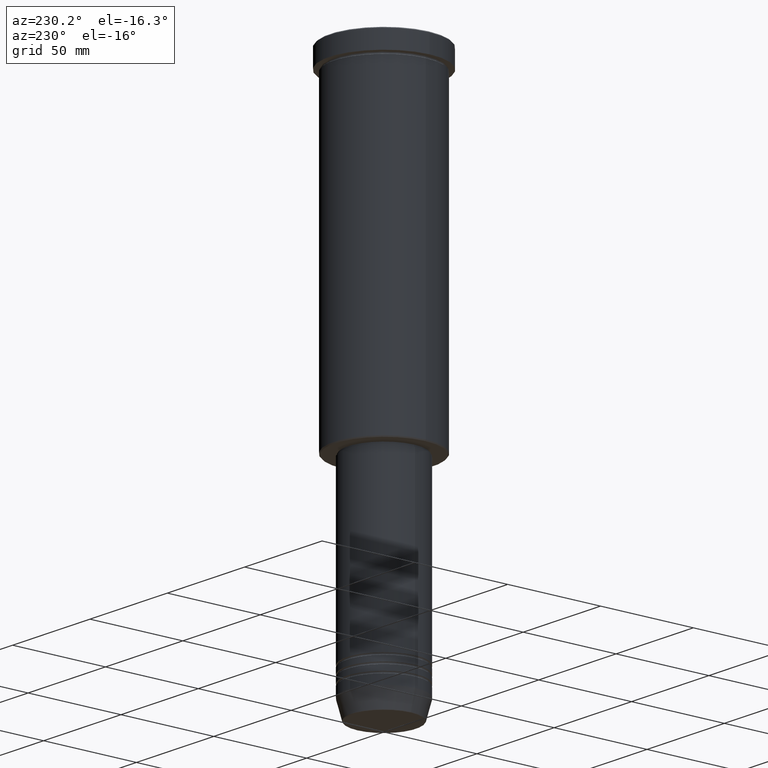
[diagram: clean part render]
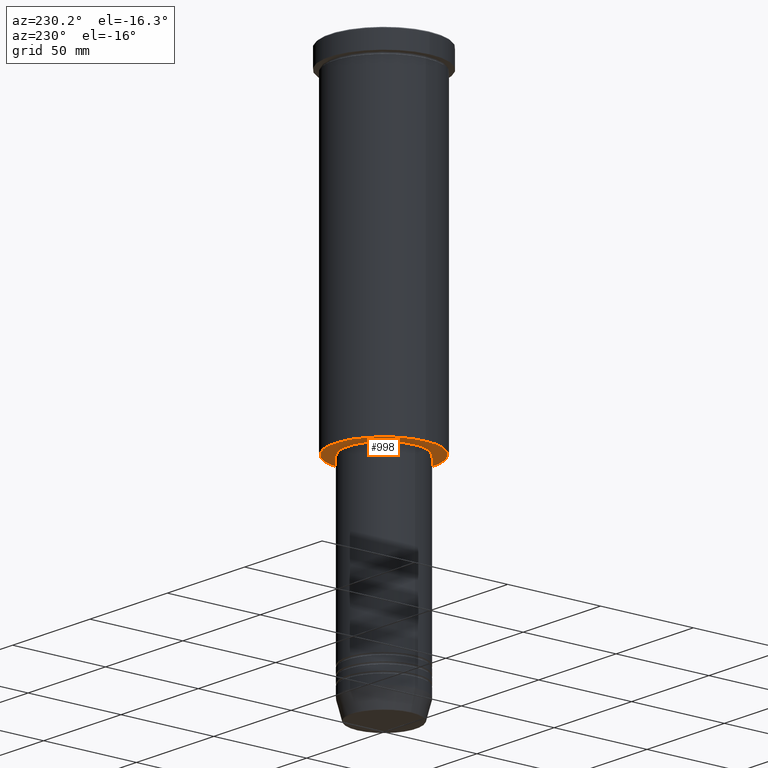
[diagram: same view with one face highlighted and labeled with its STEP entity id]
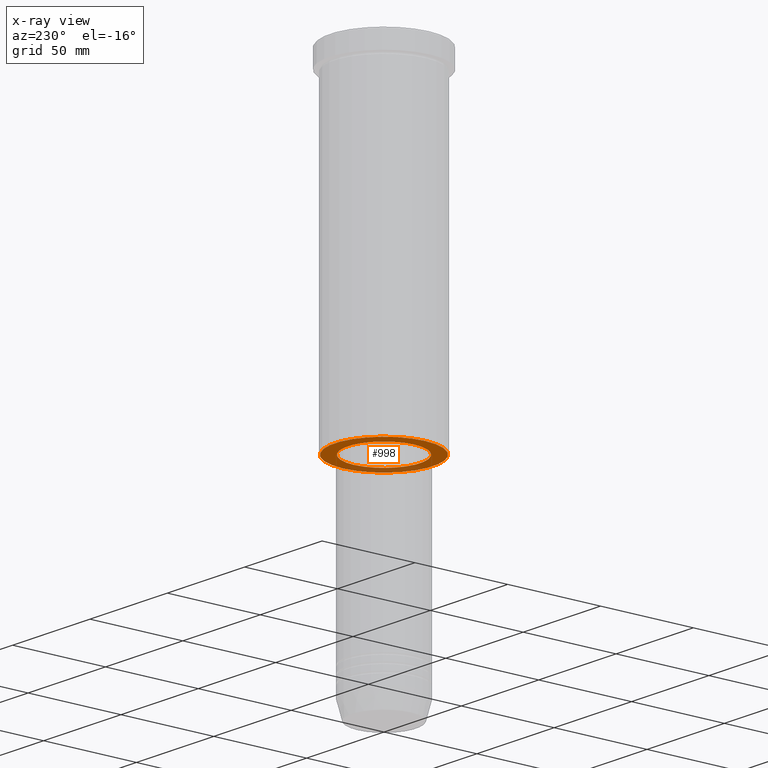
[diagram: x-ray of the same camera — body ghosted, the highlighted face saturated]
A machine part, auxiliary view. The second image highlights one B-rep face of the part: STEP entity #998.
The next image is the same camera in x-ray: the body ghosted, the highlighted face saturated — about 22% of this face is hidden behind the body in this view.
In plain terms, the highlighted planar face has unit normal (0, 0, -1).
Its self-contained STEP definition (entity closure, byte-faithful):
#15 = CIRCLE ( 'NONE', #415, 19.50000000000000000 ) ;
#19 = FACE_BOUND ( 'NONE', #1058, .T. ) ;
#35 = CIRCLE ( 'NONE', #582, 26.50000000000007816 ) ;
#40 = VERTEX_POINT ( 'NONE', #47 ) ;
#46 = VERTEX_POINT ( 'NONE', #767 ) ;
#47 = CARTESIAN_POINT ( 'NONE',  ( -19.50000000000000000, 2.388061258337338939E-15, -175.9999999999999432 ) ) ;
#60 = ORIENTED_EDGE ( 'NONE', *, *, #313, .T. ) ;
#94 = AXIS2_PLACEMENT_3D ( 'NONE', #286, #111, #729 ) ;
#100 = DIRECTION ( 'NONE',  ( -1.000000000000000000, 0.000000000000000000, 0.000000000000000000 ) ) ;
#111 = DIRECTION ( 'NONE',  ( -0.000000000000000000, -0.000000000000000000, 1.000000000000000000 ) ) ;
#162 = CARTESIAN_POINT ( 'NONE',  ( 0.000000000000000000, 0.000000000000000000, -175.9999999999999432 ) ) ;
#244 = CARTESIAN_POINT ( 'NONE',  ( 19.50000000000000000, 0.000000000000000000, -175.9999999999999432 ) ) ;
#286 = CARTESIAN_POINT ( 'NONE',  ( 0.000000000000000000, 0.000000000000000000, -175.9999999999999432 ) ) ;
#313 = EDGE_CURVE ( 'NONE', #333, #40, #15, .T. ) ;
#326 = DIRECTION ( 'NONE',  ( -0.000000000000000000, -0.000000000000000000, 1.000000000000000000 ) ) ;
#333 = VERTEX_POINT ( 'NONE', #244 ) ;
#344 = CIRCLE ( 'NONE', #94, 19.50000000000000000 ) ;
#357 = ORIENTED_EDGE ( 'NONE', *, *, #513, .T. ) ;
#401 = CIRCLE ( 'NONE', #545, 26.50000000000007816 ) ;
#415 = AXIS2_PLACEMENT_3D ( 'NONE', #162, #326, #420 ) ;
#420 = DIRECTION ( 'NONE',  ( 1.000000000000000000, 0.000000000000000000, 0.000000000000000000 ) ) ;
#446 = DIRECTION ( 'NONE',  ( -1.000000000000000000, 0.000000000000000000, -0.000000000000000000 ) ) ;
#463 = FACE_OUTER_BOUND ( 'NONE', #825, .T. ) ;
#467 = EDGE_CURVE ( 'NONE', #977, #46, #401, .T. ) ;
#513 = EDGE_CURVE ( 'NONE', #46, #977, #35, .T. ) ;
#543 = CARTESIAN_POINT ( 'NONE',  ( 0.000000000000000000, 27.00000000000000355, -175.9999999999999432 ) ) ;
#545 = AXIS2_PLACEMENT_3D ( 'NONE', #1072, #548, #100 ) ;
#548 = DIRECTION ( 'NONE',  ( 0.000000000000000000, 0.000000000000000000, -1.000000000000000000 ) ) ;
#582 = AXIS2_PLACEMENT_3D ( 'NONE', #801, #917, #1092 ) ;
#637 = CARTESIAN_POINT ( 'NONE',  ( 26.50000000000007816, 0.000000000000000000, -175.9999999999999432 ) ) ;
#729 = DIRECTION ( 'NONE',  ( 1.000000000000000000, 0.000000000000000000, 0.000000000000000000 ) ) ;
#740 = ORIENTED_EDGE ( 'NONE', *, *, #1097, .T. ) ;
#767 = CARTESIAN_POINT ( 'NONE',  ( -26.50000000000007816, 3.275930187719175074E-15, -175.9999999999999432 ) ) ;
#801 = CARTESIAN_POINT ( 'NONE',  ( 0.000000000000000000, 0.000000000000000000, -175.9999999999999432 ) ) ;
#825 = EDGE_LOOP ( 'NONE', ( #1054, #357 ) ) ;
#829 = AXIS2_PLACEMENT_3D ( 'NONE', #543, #1095, #446 ) ;
#835 = PLANE ( 'NONE',  #829 ) ;
#917 = DIRECTION ( 'NONE',  ( 0.000000000000000000, 0.000000000000000000, -1.000000000000000000 ) ) ;
#977 = VERTEX_POINT ( 'NONE', #637 ) ;
#998 = ADVANCED_FACE ( 'NONE', ( #463, #19 ), #835, .T. ) ;
#1054 = ORIENTED_EDGE ( 'NONE', *, *, #467, .T. ) ;
#1058 = EDGE_LOOP ( 'NONE', ( #60, #740 ) ) ;
#1072 = CARTESIAN_POINT ( 'NONE',  ( 0.000000000000000000, 0.000000000000000000, -175.9999999999999432 ) ) ;
#1092 = DIRECTION ( 'NONE',  ( -1.000000000000000000, 0.000000000000000000, 0.000000000000000000 ) ) ;
#1095 = DIRECTION ( 'NONE',  ( 0.000000000000000000, 0.000000000000000000, -1.000000000000000000 ) ) ;
#1097 = EDGE_CURVE ( 'NONE', #40, #333, #344, .T. ) ;